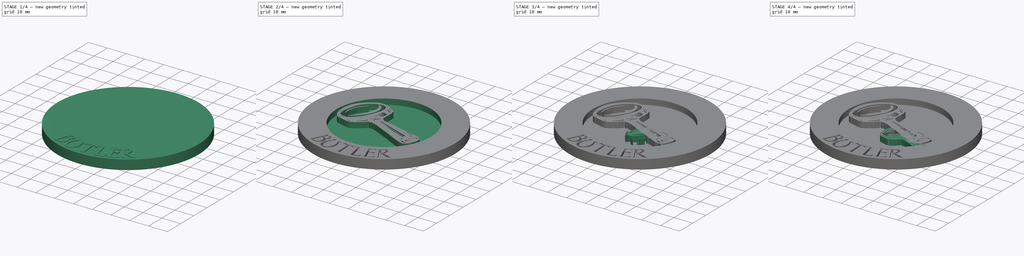
[diagram: build sequence overview — one tinted view per stage of 4, left to right]
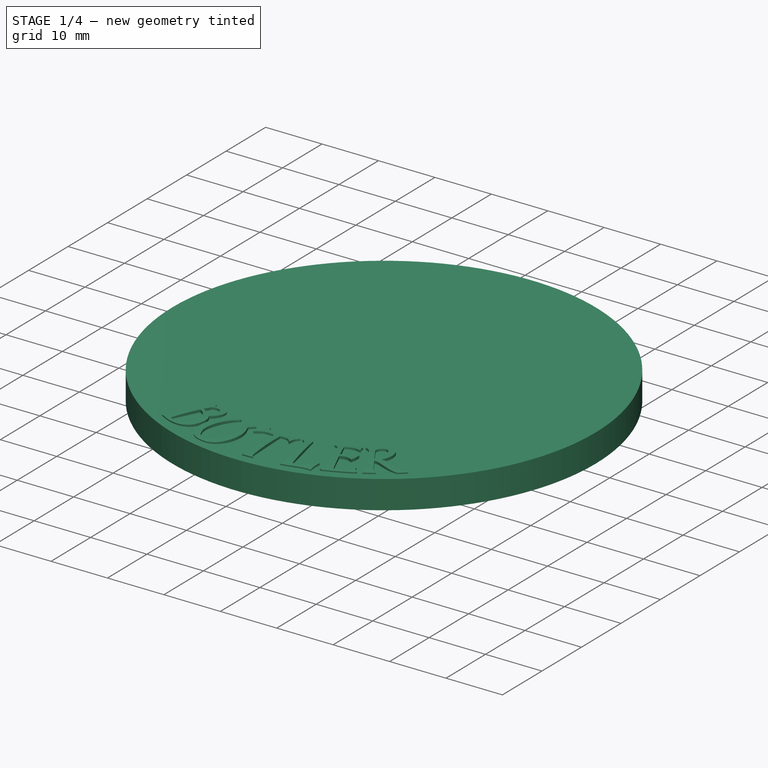
[diagram: stage 1 of 4 — iso view after this stage's code; geometry added in this stage tinted green]
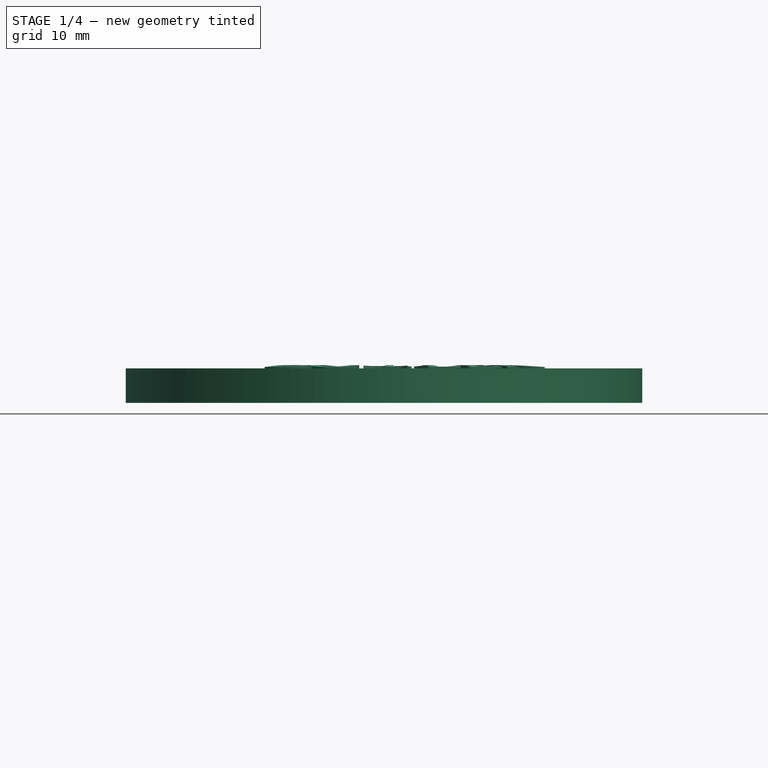
[diagram: stage 1 of 4 — front view after this stage's code; geometry added in this stage tinted green]
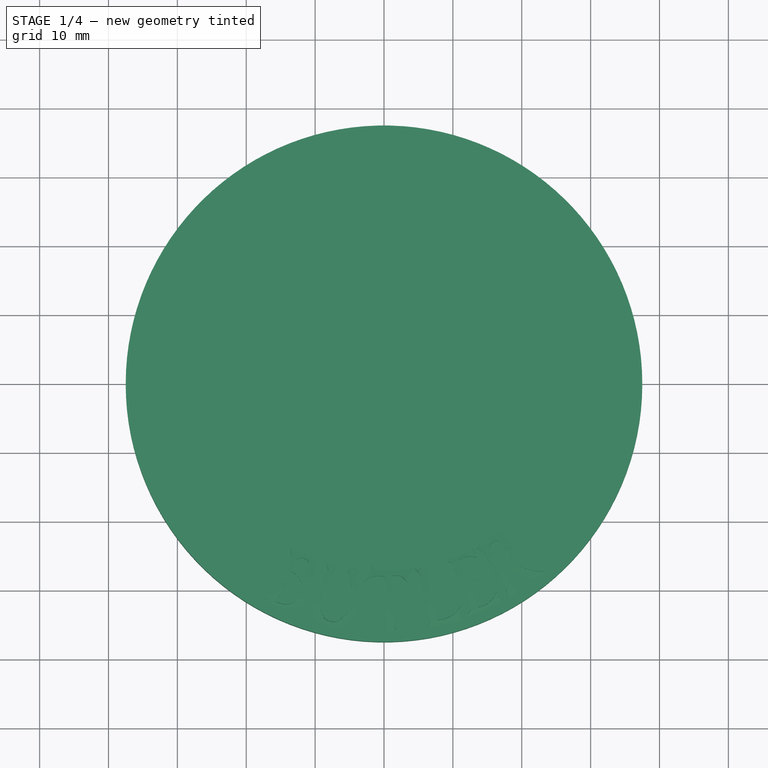
[diagram: stage 1 of 4 — top view after this stage's code; geometry added in this stage tinted green]
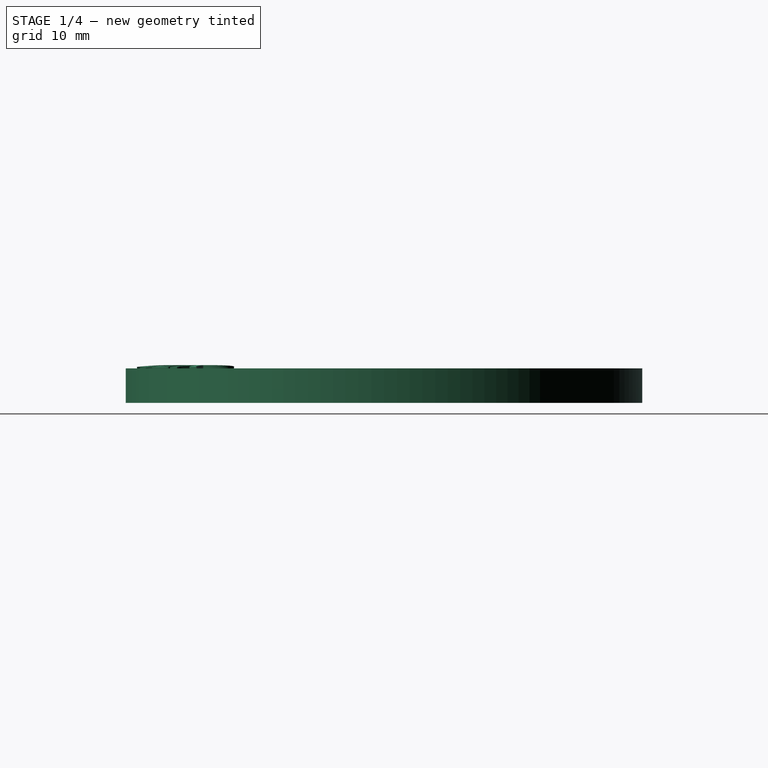
[diagram: stage 1 of 4 — right view after this stage's code; geometry added in this stage tinted green]
FCSTD DOCUMENT  (FreeCAD 1.0R39285 (Git))
Label: InvestigatorToken
License: All rights reserved
LicenseURL: https://en.wikipedia.org/wiki/All_rights_reserved
objects: Part::Feature×33, Sketcher::SketchObject×4, Part::Cut×3, Part::Extrusion×3, Part::Compound×2, Spreadsheet::Sheet×1, PartDesign::Pad×1, PartDesign::Pocket×1, PartDesign::Body×1, Part::Part2DObjectPython×1, Part::Revolution×1, Part::FeaturePython×1, Part::Scale×1, Part::MultiFuse×1
note: 61 computed .brp shape members not serialized (recipe doc carries the construction recipe); baked Part::Feature solids carry a one-line shape summary decoded from their .brp

FEATURE [Sketcher::SketchObject] Sketch  label="OuterRing"
  ArcFitTolerance = 1e-06
  FullyConstrained = true
  MakeInternals = false
  expr: .Constraints.Radius = <<GlobalParameters>>.OuterRadius
  sketch-geometry (1):
    g0: Circle CenterX=0 CenterY=0 CenterZ=0 NormalX=0 NormalY=0 NormalZ=1 AngleXU=0 Radius=37.5
  constraints (2):
    c: Diameter(g0) = 75  'Radius'
    c: Coincident(g0,g-1)
FEATURE [Sketcher::SketchObject] Sketch001  label="InnerRing"
  ArcFitTolerance = 1e-06
  AttachmentSupport = -> [Sketch]
  FullyConstrained = true
  MakeInternals = false
  MapMode = 2
  expr: .Constraints.Radius = <<GlobalParameters>>.InnerRadius
  sketch-geometry (1):
    g0: Circle CenterX=0 CenterY=0 CenterZ=0 NormalX=0 NormalY=0 NormalZ=1 AngleXU=0 Radius=25
  constraints (2):
    c: Diameter(g0) = 50  'Radius'
    c: Coincident(g0,g-1)
FEATURE [Spreadsheet::Sheet] Spreadsheet  label="GlobalParameters"
  cells = A1='Type; B1='InnerDepth; C1='InnerRadius; D1='OuterDepth; E1='OuterRadius; A2==hiddenref(Body.Configuration.String); B2(InnerDepth)==.B3; C2(InnerRadius)==.C3; D2(OuterDepth)==.D3; E2(OuterRadius)==.E3; A3='Character; B3=3; C3=50; D3=5; E3=75; A4='Token; B4=2; C4=30; D4=4; E4=50
  expr: .cells.Bind.B2.E2 = tuple(.cells; <<B>> + str(hiddenref(Body.Configuration) + 3); <<E>> + str(hiddenref(Body.Configuration) + 3))
FEATURE [PartDesign::Pad] Pad
  Direction = (0,0,1)
  Length = 5
  Length2 = 10
  Profile = -> Sketch
  ReferenceAxis = -> Sketch [N_Axis]
  Refine = true
  Reversed = true
  Suppressed = false
  Type = 0
  expr: Length = <<GlobalParameters>>.OuterDepth
FEATURE [PartDesign::Body] Body  label="Token"
  AllowCompound = false
  Configuration = 0
  Group = -> [Sketch,Sketch001,Pad,Pocket]
  Origin = -> Origin
  Tip = -> Pocket
  expr: .Configuration.Enum = Spreadsheet.cells[<<A3:|>>]
FEATURE [Part::Part2DObjectPython] ShapeString  # Draft 2D object (typed FeaturePython)
  FontFile = <userpath>/Botc/Dumbledor 2 Regular.ttf
  Fuse = false
  Justification = 6
  JustificationReference = 0
  KeepLeftMargin = false
  MakeFace = true
  ObliqueAngle = 0
  Placement = pos=(29.36,65.41,0) rot=(0,0,1;0rad)
  ScaleToSize = true
  Size = 9
  String = BUTLER
  Tracking = 0
FEATURE [Sketcher::SketchObject] Sketch002  label="Curve"
  ArcFitTolerance = 1e-06
  ExternalGeometry = -> [Sketch001,Sketch]
  FullyConstrained = false
  MakeInternals = false
  Placement = pos=(0,0,0) rot=(1,0,0;1.5708rad)
  sketch-geometry (1):
    g0: ArcOfCircle CenterX=31.25 CenterY=-40.5014 CenterZ=0 NormalX=0 NormalY=0 NormalZ=1 AngleXU=0 Radius=40.9808 StartAngle=1.41769 EndAngle=1.7239
  constraints (2):
    c: Coincident(g0,g-3)
    c: Coincident(g0,g-4)
FEATURE [Part::Revolution] Revolve
  Angle = 180
  Axis = (0,0,-1)
  Base = (0,0,0)
  FaceMakerClass = Part::FaceMakerBullseye
  Solid = false
  Source = -> Sketch002
  Symmetric = false
FEATURE [Sketcher::SketchObject] Mapped_Sketch
  ArcFitTolerance = 1e-06
  AttachmentSupport = -> [Revolve]
  FullyConstrained = false
  MakeInternals = false
  sketch-geometry (6):
    g0: LineSegment [constr] StartX=-4.04154 StartY=76.6034 StartZ=0 EndX=-4.04154 EndY=63.7311 EndZ=0
    g1: LineSegment [constr] StartX=-4.04154 StartY=63.7311 StartZ=0 EndX=113.768 EndY=63.7311 EndZ=0
    g2: LineSegment [constr] StartX=113.768 StartY=63.7311 StartZ=0 EndX=113.768 EndY=76.6034 EndZ=0
    g3: LineSegment [constr] StartX=113.768 StartY=76.6034 StartZ=0 EndX=-4.04154 EndY=76.6034 EndZ=0
    g4: LineSegment [constr] StartX=-4.04154 StartY=76.2801 StartZ=0 EndX=113.768 EndY=76.2801 EndZ=0
    g5: LineSegment [constr] StartX=-13.4578 StartY=76.2801 StartZ=0 EndX=-13.4578 EndY=63.7311 EndZ=0
  constraints (16):
    c: Coincident(g0,g1)
    c: Coincident(g1,g2)
    c: Coincident(g2,g3)
    c: Coincident(g3,g0)
    c: Vertical(g0)
    c: Vertical(g2)
    c: Horizontal(g1)
    c: Horizontal(g3)
    c: PointOnObject(g4,g0)
    c: PointOnObject(g4,g2)
    c: Horizontal(g4)
    c: DistanceX(g4,g4) = 117.81  'Text_Max_Width'
    c: PointOnObject(g5,g4)
    c: PointOnObject(g5,g1)
    c: Vertical(g5)
    c: DistanceY(g5,g5) = 12.549  'Text_Max_Height'
FEATURE [Part::FeaturePython] Sketch_On_Surface  # WARN: FeaturePython — macro-defined, semantics opaque (R4)
  ConstructionBounds = true
  ExtraObjects = -> [ShapeString]
  FillExtrusion = true
  FillFaces = true
  ReverseU = true
  ReverseV = false
  Sketch = -> Mapped_Sketch
  SwapUV = false
  Thickness = 2
  expr: Thickness = <<GlobalParameters>>.OuterDepth - <<GlobalParameters>>.InnerDepth
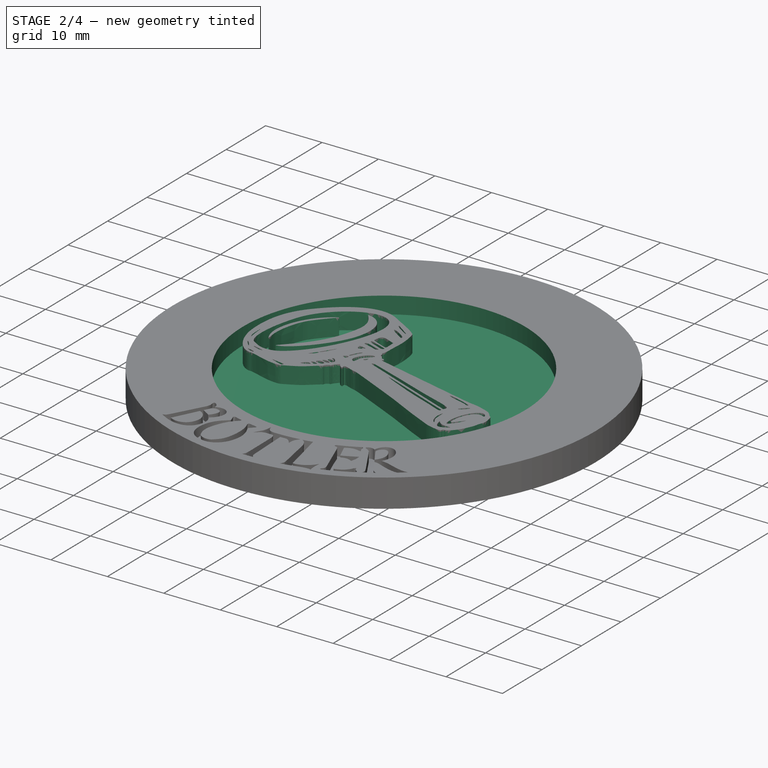
[diagram: stage 2 of 4 — iso view after this stage's code; geometry added in this stage tinted green]
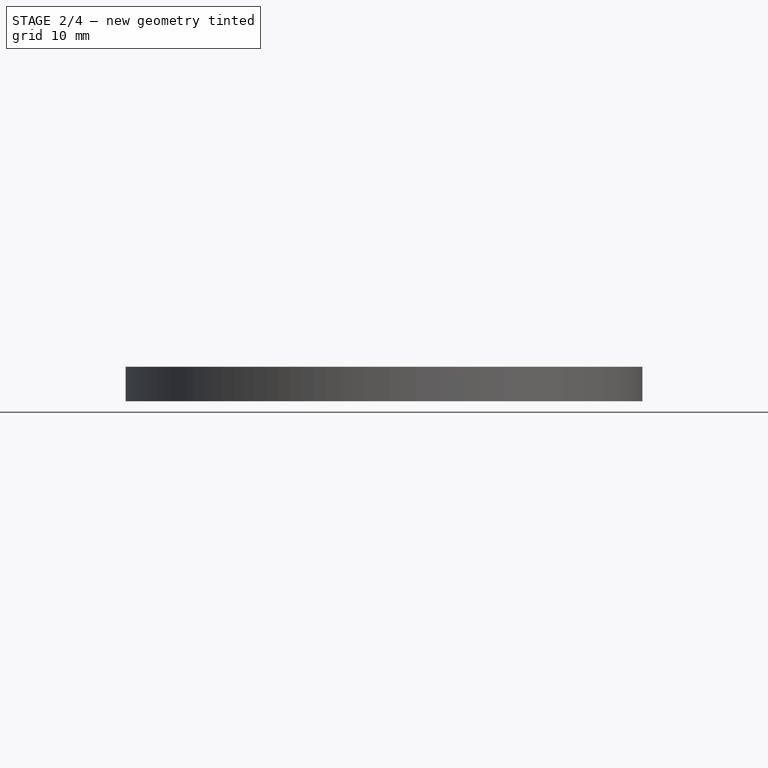
[diagram: stage 2 of 4 — front view after this stage's code; geometry added in this stage tinted green]
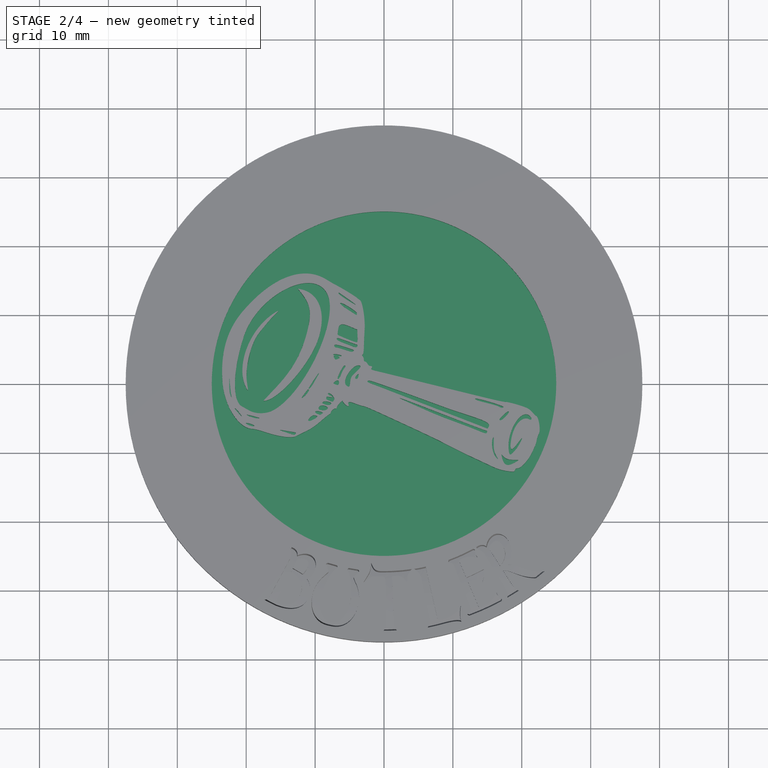
[diagram: stage 2 of 4 — top view after this stage's code; geometry added in this stage tinted green]
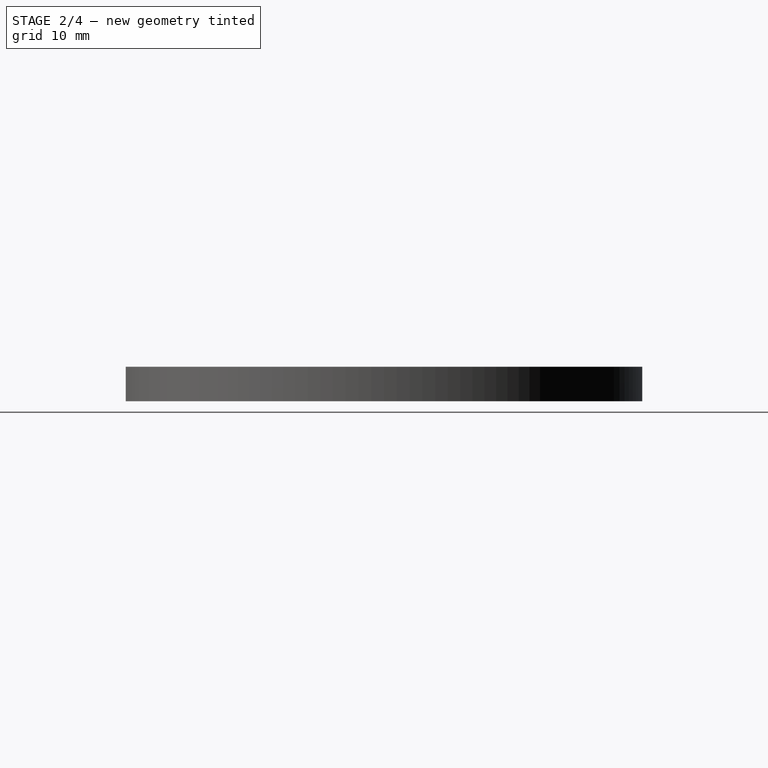
[diagram: stage 2 of 4 — right view after this stage's code; geometry added in this stage tinted green]
FEATURE [PartDesign::Pocket] Pocket
  BaseFeature = -> Pad
  Direction = (0,0,-1)
  Length = 3
  Length2 = 5
  Profile = -> Sketch001
  ReferenceAxis = -> Sketch001 [N_Axis]
  Refine = true
  Suppressed = false
  Type = 0
  expr: Length = <<GlobalParameters>>.InnerDepth
FEATURE [Part::Cut] Cut
  Base = -> Body
  Refine = true
  Tool = -> Sketch_On_Surface
FEATURE [Part::Scale] Scale  label="InvestigatorToken"
  Base = -> Cut002
  Placement = pos=(-23.5,16,0) rot=(0,0,1;0rad)
  Uniform = true
  UniformScale = 1.5
  XScale = 1
  YScale = 1
  ZScale = 1
FEATURE [Part::MultiFuse] Fusion
  Refine = true
  Shapes = -> [Cut,Scale]
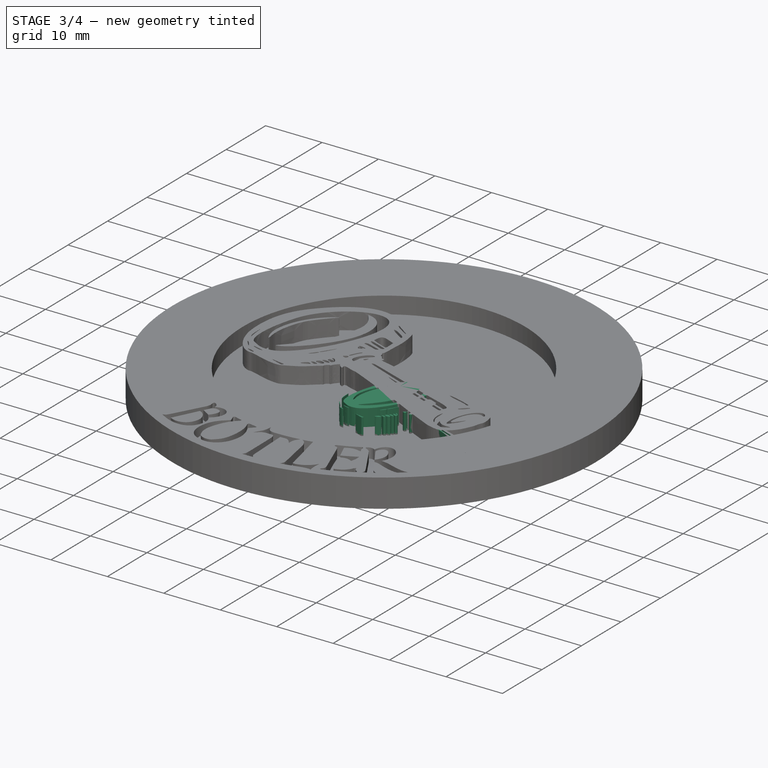
[diagram: stage 3 of 4 — iso view after this stage's code; geometry added in this stage tinted green]
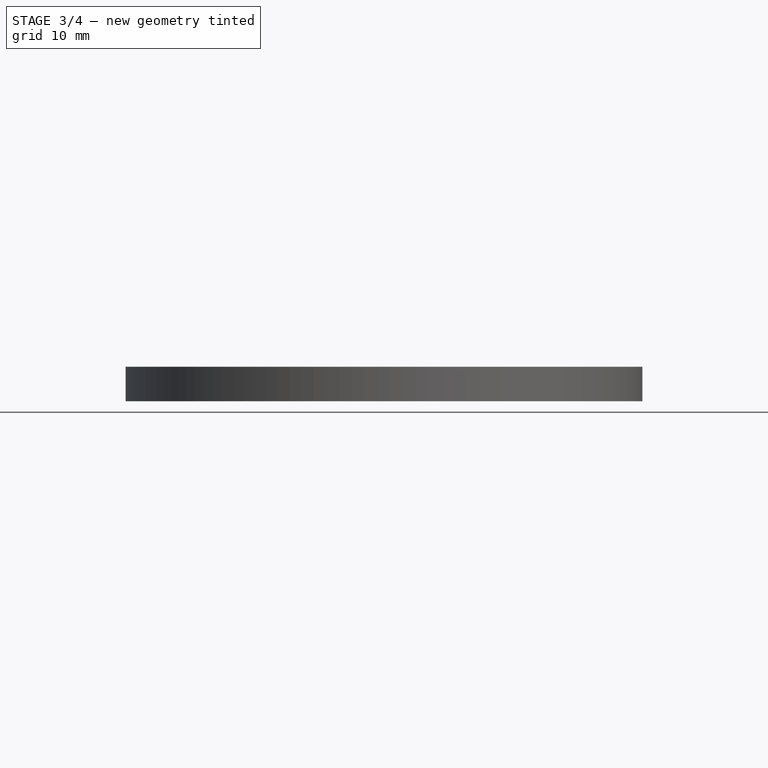
[diagram: stage 3 of 4 — front view after this stage's code; geometry added in this stage tinted green]
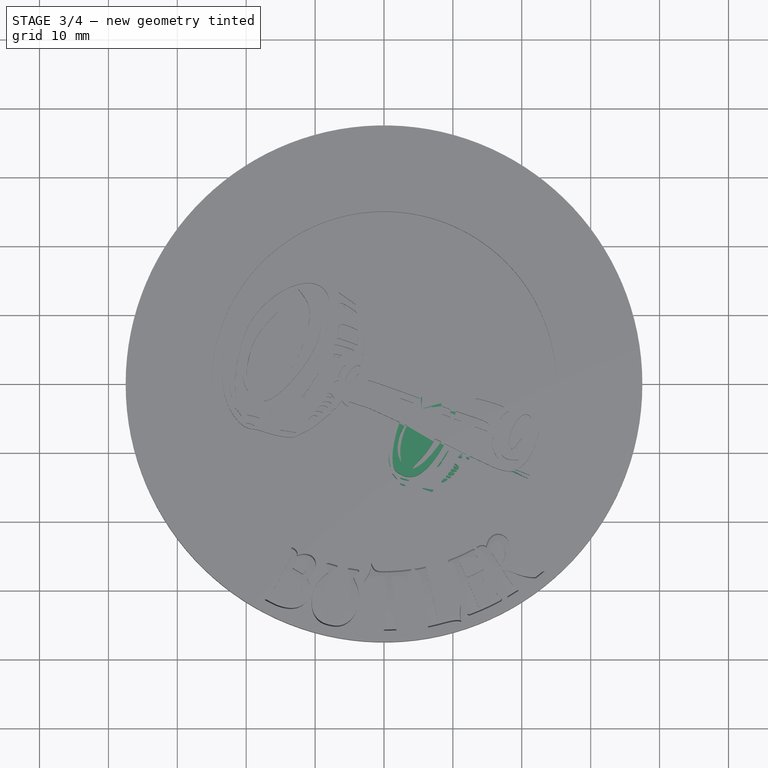
[diagram: stage 3 of 4 — top view after this stage's code; geometry added in this stage tinted green]
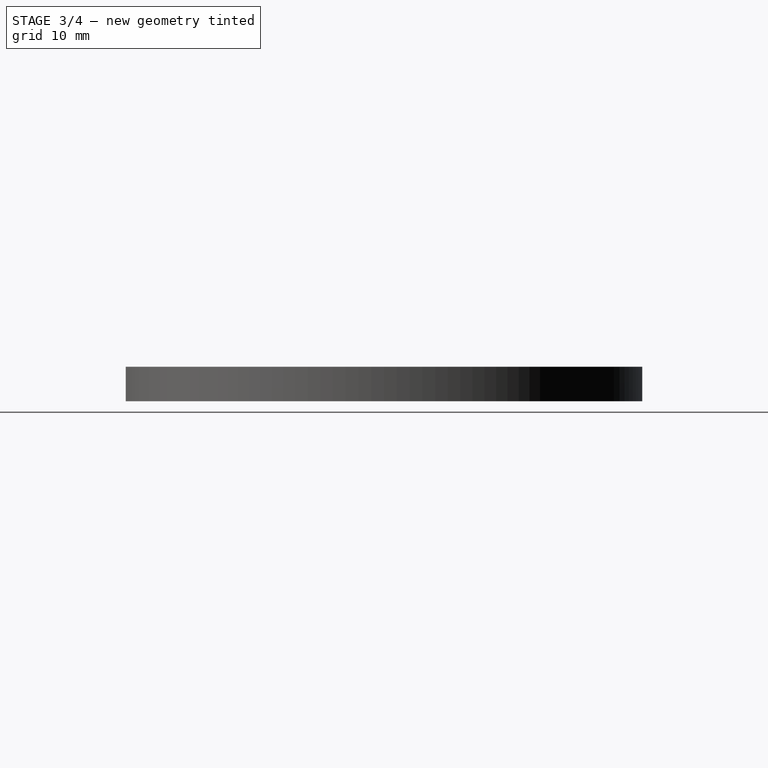
[diagram: stage 3 of 4 — right view after this stage's code; geometry added in this stage tinted green]
FEATURE [Part::Extrusion] Extrude001  label="Extrude-Blue-HL"
  Base = -> Compound
  Dir = (0,0,1)
  DirMode = 0
  FaceMakerClass = Part::FaceMakerBullseye
  FaceMakerMode = 3
  LengthFwd = 0
  LengthRev = 3
  Solid = false
  Symmetric = false
FEATURE [Part::Extrusion] Extrude002  label="Extrude-White"
  Base = -> Compound001
  Dir = (0,0,1)
  DirMode = 0
  FaceMakerClass = Part::FaceMakerBullseye
  FaceMakerMode = 3
  LengthFwd = 0
  LengthRev = 3
  Solid = false
  Symmetric = false
FEATURE [Part::Cut] Cut001  label="Highlights"
  Base = -> Extrude002
  Refine = true
  Tool = -> Extrude001
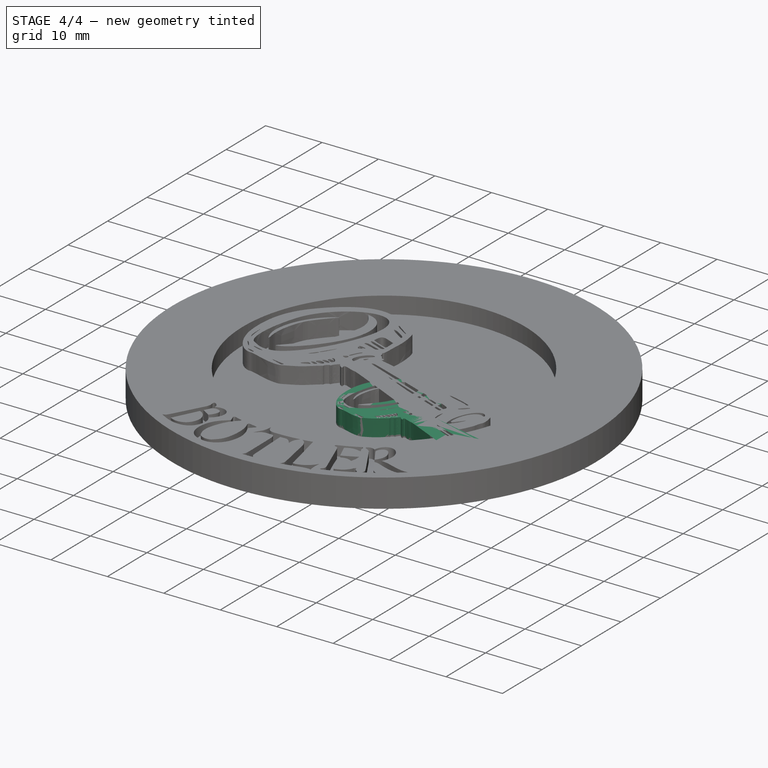
[diagram: stage 4 of 4 — iso view after this stage's code; geometry added in this stage tinted green]
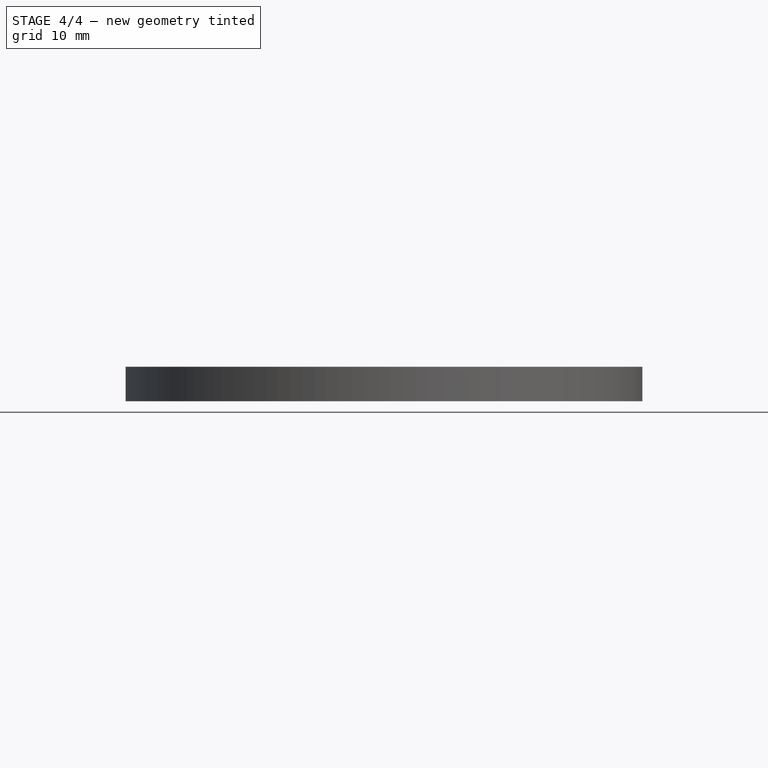
[diagram: stage 4 of 4 — front view after this stage's code; geometry added in this stage tinted green]
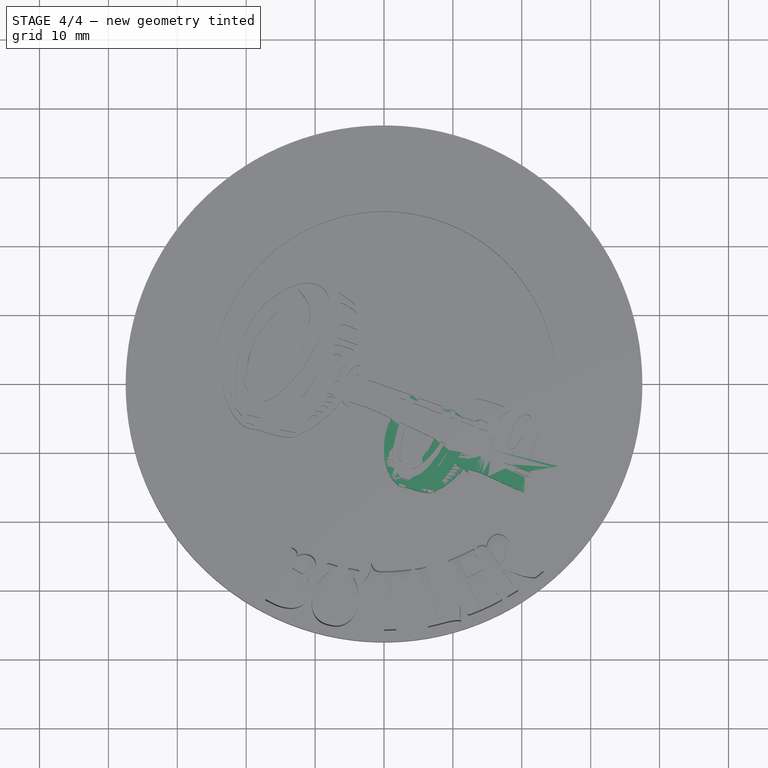
[diagram: stage 4 of 4 — top view after this stage's code; geometry added in this stage tinted green]
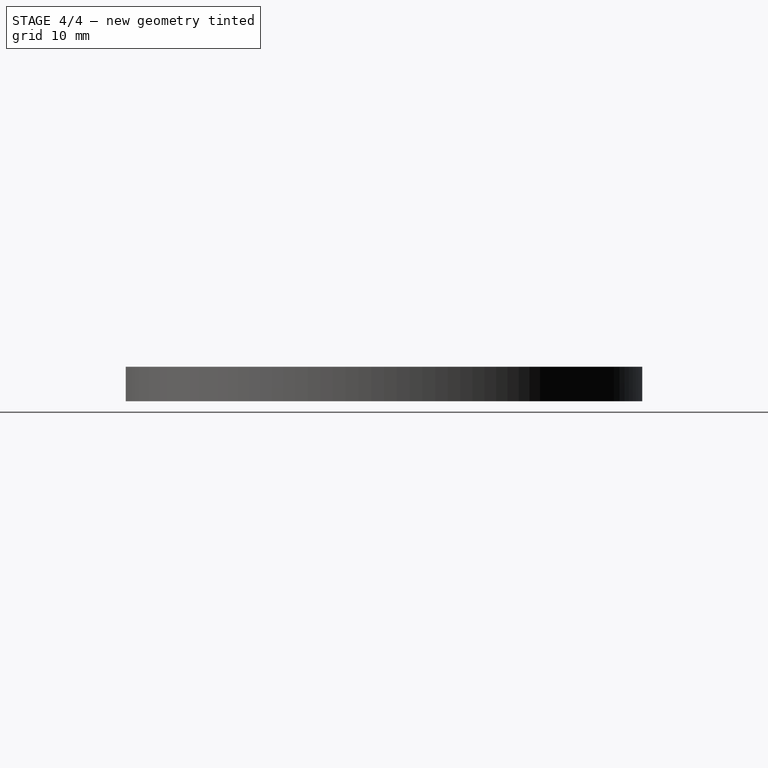
[diagram: stage 4 of 4 — right view after this stage's code; geometry added in this stage tinted green]
FEATURE [Part::Feature] path1  label="path1-blue-base"
  shape: bbox 31.01 x 20 x 2e-07 mm, 1 faces, 0 solids (baked)
FEATURE [Part::Feature] path002
  shape: bbox 1.791 x 1.276 x 2e-07 mm, 1 faces, 0 solids (baked)
FEATURE [Part::Feature] path003
  shape: bbox 0.7856 x 2.28 x 2e-07 mm, 1 faces, 0 solids (baked)
FEATURE [Part::Feature] path004
  shape: bbox 2.473 x 4.688 x 2e-07 mm, 1 faces, 0 solids (baked)
FEATURE [Part::Feature] path007
  shape: bbox 1.804 x 0.5896 x 2e-07 mm, 1 faces, 0 solids (baked)
FEATURE [Part::Feature] path008
  shape: bbox 9.081 x 3.711 x 2e-07 mm, 1 faces, 0 solids (baked)
FEATURE [Part::Feature] path010
  shape: bbox 12.02 x 4.698 x 2e-07 mm, 1 faces, 0 solids (baked)
FEATURE [Part::Feature] path012
  shape: bbox 0.8665 x 0.3876 x 2e-07 mm, 1 faces, 0 solids (baked)
FEATURE [Part::Feature] path014
  shape: bbox 1.162 x 0.7095 x 2e-07 mm, 1 faces, 0 solids (baked)
FEATURE [Part::Feature] path015
  shape: bbox 0.9985 x 0.9588 x 2e-07 mm, 1 faces, 0 solids (baked)
FEATURE [Part::Feature] path016
  shape: bbox 1.282 x 0.4061 x 2e-07 mm, 1 faces, 0 solids (baked)
FEATURE [Part::Feature] path017
  shape: bbox 0.8665 x 0.965 x 2e-07 mm, 1 faces, 0 solids (baked)
FEATURE [Part::Feature] path019
  shape: bbox 0.985 x 0.4819 x 2e-07 mm, 1 faces, 0 solids (baked)
FEATURE [Part::Feature] path021
  shape: bbox 10.28 x 14.42 x 2e-07 mm, 1 faces, 0 solids (baked)
FEATURE [Part::Feature] path022  label="path022-blue-hl"
  shape: bbox 6.12 x 10.86 x 2e-07 mm, 1 faces, 0 solids (baked)
FEATURE [Part::Feature] path023  label="path023-blue-hl"
  shape: bbox 4.304 x 7.922 x 2e-07 mm, 1 faces, 0 solids (baked)
FEATURE [Part::Feature] path024
  shape: bbox 1.1 x 0.6239 x 2e-07 mm, 1 faces, 0 solids (baked)
FEATURE [Part::Feature] path026
  shape: bbox 2.889 x 1.042 x 2e-07 mm, 1 faces, 0 solids (baked)
FEATURE [Part::Feature] path027
  shape: bbox 0.9729 x 0.4893 x 2e-07 mm, 1 faces, 0 solids (baked)
FEATURE [Part::Feature] path029
  shape: bbox 0.8664 x 0.8438 x 2e-07 mm, 1 faces, 0 solids (baked)
FEATURE [Part::Feature] path032
  shape: bbox 0.7296 x 0.9108 x 2e-07 mm, 1 faces, 0 solids (baked)
FEATURE [Part::Feature] path033
  shape: bbox 0.3003 x 2.115 x 2e-07 mm, 1 faces, 0 solids (baked)
FEATURE [Part::Feature] path036
  shape: bbox 1.031 x 1.663 x 2e-07 mm, 1 faces, 0 solids (baked)
FEATURE [Part::Feature] path037
  shape: bbox 2.008 x 2.49 x 2e-07 mm, 1 faces, 0 solids (baked)
FEATURE [Part::Feature] path038
  shape: bbox 0.6845 x 0.5961 x 2e-07 mm, 1 faces, 0 solids (baked)
FEATURE [Part::Feature] path039
  shape: bbox 0.8006 x 1.503 x 2e-07 mm, 1 faces, 0 solids (baked)
FEATURE [Part::Feature] path040
  shape: bbox 0.4095 x 0.57 x 2e-07 mm, 1 faces, 0 solids (baked)
FEATURE [Part::Feature] path043
  shape: bbox 0.9765 x 0.6039 x 2e-07 mm, 1 faces, 0 solids (baked)
FEATURE [Part::Feature] path044
  shape: bbox 2.046 x 0.7615 x 2e-07 mm, 1 faces, 0 solids (baked)
FEATURE [Part::Feature] path045
  shape: bbox 2.03 x 0.989 x 2e-07 mm, 1 faces, 0 solids (baked)
FEATURE [Part::Feature] path046
  shape: bbox 1.95 x 1.937 x 2e-07 mm, 1 faces, 0 solids (baked)
FEATURE [Part::Feature] path048
  shape: bbox 1.849 x 1.268 x 2e-07 mm, 1 faces, 0 solids (baked)
FEATURE [Part::Feature] path051
  shape: bbox 1.69 x 1.186 x 2e-07 mm, 1 faces, 0 solids (baked)
FEATURE [Part::Compound] Compound  label="Blue-HL"
  Links = -> [path022,path023]
FEATURE [Part::Compound] Compound001  label="White"
  Links = -> [path051,path002,path003,path004,path007,path008,path010,path012,path014,path015,path016,path017,path019,path021,path024,path026,path027,path029,path032,path033,path036,path037,path038,path039,path040,path043,path044,path045,path046,path048]
FEATURE [Part::Extrusion] Extrude  label="Extrude-Blue-Base"
  Base = -> path1
  Dir = (0,0,1)
  DirMode = 0
  FaceMakerClass = Part::FaceMakerBullseye
  FaceMakerMode = 3
  LengthFwd = 0
  LengthRev = 3
  Solid = false
  Symmetric = false
FEATURE [Part::Cut] Cut002
  Base = -> Extrude
  Refine = true
  Tool = -> Cut001
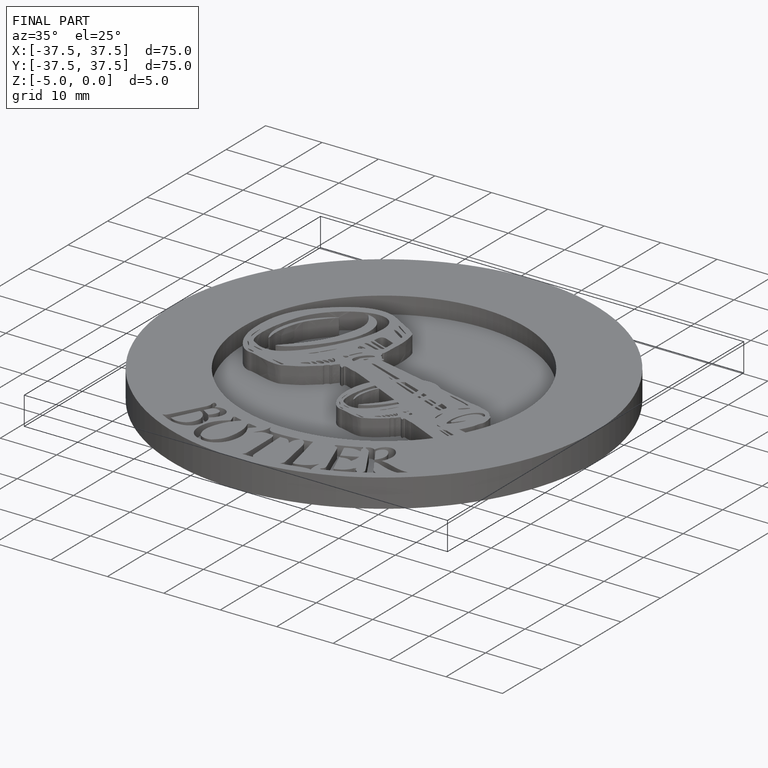
[diagram: finished part — iso view with bounding-box wireframe]
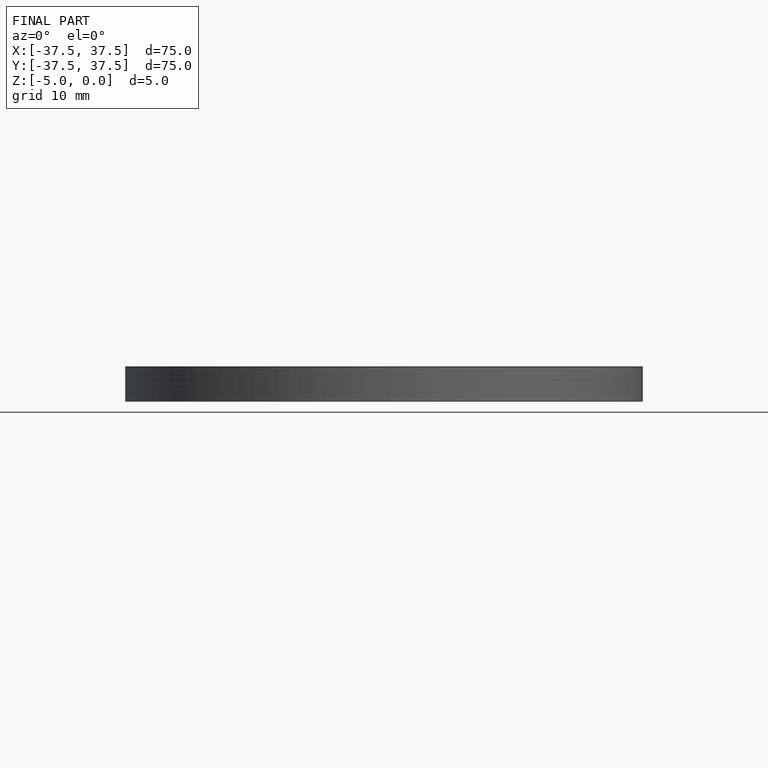
[diagram: finished part — front view with bounding-box wireframe]
